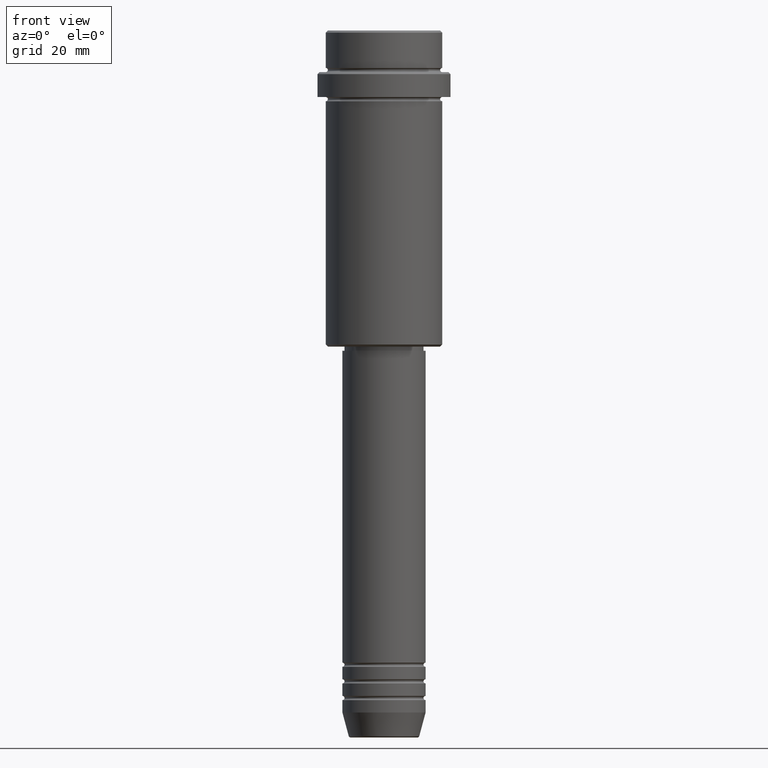
[diagram: clean part render]
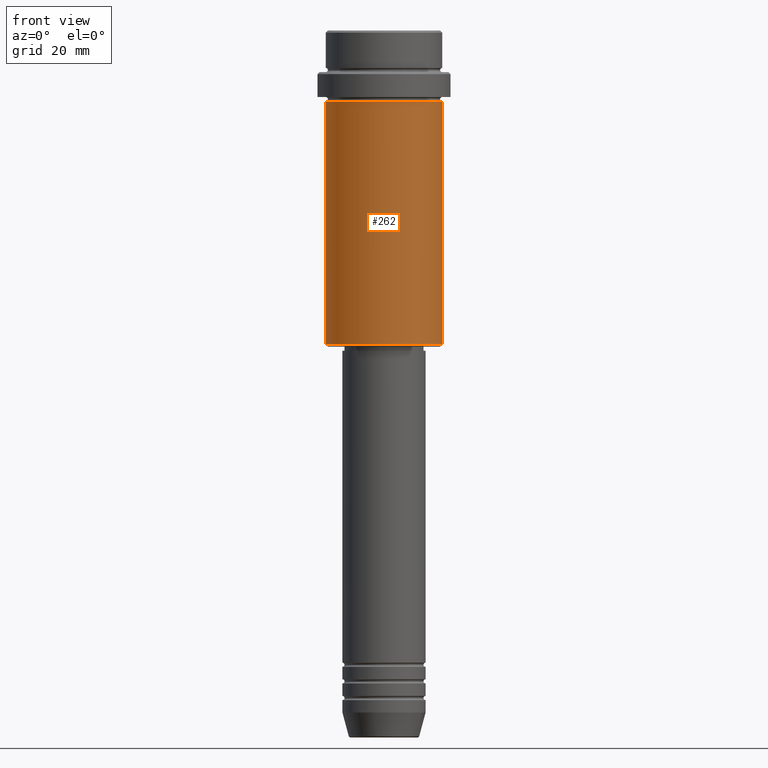
[diagram: same view with one face highlighted and labeled with its STEP entity id]
A machine part, front view. The second image highlights one B-rep face of the part: STEP entity #262.
In plain terms, the highlighted cylindrical surface (partial cylindrical patch) has radius 14 mm, axis along (-0, -0, 1).
Its self-contained STEP definition (entity closure, byte-faithful):
#21 = DIRECTION ( 'NONE',  ( -1.000000000000000000, 0.000000000000000000, 0.000000000000000000 ) ) ;
#43 = AXIS2_PLACEMENT_3D ( 'NONE', #1165, #90, #415 ) ;
#50 = CARTESIAN_POINT ( 'NONE',  ( 13.99999999999998934, 0.000000000000000000, -75.50000000000001421 ) ) ;
#90 = DIRECTION ( 'NONE',  ( -0.000000000000000000, -0.000000000000000000, 1.000000000000000000 ) ) ;
#168 = ORIENTED_EDGE ( 'NONE', *, *, #685, .T. ) ;
#201 = EDGE_CURVE ( 'NONE', #933, #327, #881, .T. ) ;
#250 = CIRCLE ( 'NONE', #1247, 13.99999999999998934 ) ;
#262 = ADVANCED_FACE ( 'NONE', ( #1036 ), #955, .T. ) ;
#285 = CARTESIAN_POINT ( 'NONE',  ( -13.99999999999998934, 1.714505518806293257E-15, -75.50000000000001421 ) ) ;
#325 = DIRECTION ( 'NONE',  ( -0.000000000000000000, -0.000000000000000000, 1.000000000000000000 ) ) ;
#327 = VERTEX_POINT ( 'NONE', #993 ) ;
#328 = EDGE_CURVE ( 'NONE', #1182, #1074, #250, .T. ) ;
#399 = DIRECTION ( 'NONE',  ( 1.000000000000000000, 0.000000000000000000, 0.000000000000000000 ) ) ;
#406 = DIRECTION ( 'NONE',  ( -0.000000000000000000, -0.000000000000000000, 1.000000000000000000 ) ) ;
#409 = ORIENTED_EDGE ( 'NONE', *, *, #328, .T. ) ;
#411 = EDGE_LOOP ( 'NONE', ( #674, #409, #168, #939 ) ) ;
#415 = DIRECTION ( 'NONE',  ( 1.000000000000000000, 0.000000000000000000, 0.000000000000000000 ) ) ;
#432 = CARTESIAN_POINT ( 'NONE',  ( -13.99999999999997868, 1.714505518806292666E-15, -17.00000000000000355 ) ) ;
#568 = LINE ( 'NONE', #1311, #579 ) ;
#579 = VECTOR ( 'NONE', #1003, 1000.000000000000000 ) ;
#674 = ORIENTED_EDGE ( 'NONE', *, *, #1169, .F. ) ;
#685 = EDGE_CURVE ( 'NONE', #1074, #327, #568, .T. ) ;
#738 = LINE ( 'NONE', #1164, #1288 ) ;
#881 = CIRCLE ( 'NONE', #43, 13.99999999999997868 ) ;
#933 = VERTEX_POINT ( 'NONE', #432 ) ;
#936 = CARTESIAN_POINT ( 'NONE',  ( 0.000000000000000000, 0.000000000000000000, 0.000000000000000000 ) ) ;
#939 = ORIENTED_EDGE ( 'NONE', *, *, #201, .F. ) ;
#955 = CYLINDRICAL_SURFACE ( 'NONE', #1365, 13.99999999999998934 ) ;
#993 = CARTESIAN_POINT ( 'NONE',  ( 13.99999999999997868, 0.000000000000000000, -17.00000000000000355 ) ) ;
#1003 = DIRECTION ( 'NONE',  ( -0.000000000000000000, -0.000000000000000000, 1.000000000000000000 ) ) ;
#1036 = FACE_OUTER_BOUND ( 'NONE', #411, .T. ) ;
#1074 = VERTEX_POINT ( 'NONE', #50 ) ;
#1084 = CARTESIAN_POINT ( 'NONE',  ( 0.000000000000000000, 0.000000000000000000, -75.50000000000001421 ) ) ;
#1164 = CARTESIAN_POINT ( 'NONE',  ( -13.99999999999998934, 1.714505518806293257E-15, 0.000000000000000000 ) ) ;
#1165 = CARTESIAN_POINT ( 'NONE',  ( 0.000000000000000000, 0.000000000000000000, -17.00000000000000355 ) ) ;
#1169 = EDGE_CURVE ( 'NONE', #1182, #933, #738, .T. ) ;
#1182 = VERTEX_POINT ( 'NONE', #285 ) ;
#1247 = AXIS2_PLACEMENT_3D ( 'NONE', #1084, #325, #21 ) ;
#1288 = VECTOR ( 'NONE', #406, 1000.000000000000000 ) ;
#1311 = CARTESIAN_POINT ( 'NONE',  ( 13.99999999999998934, 0.000000000000000000, 0.000000000000000000 ) ) ;
#1365 = AXIS2_PLACEMENT_3D ( 'NONE', #936, #1377, #399 ) ;
#1377 = DIRECTION ( 'NONE',  ( -0.000000000000000000, -0.000000000000000000, 1.000000000000000000 ) ) ;